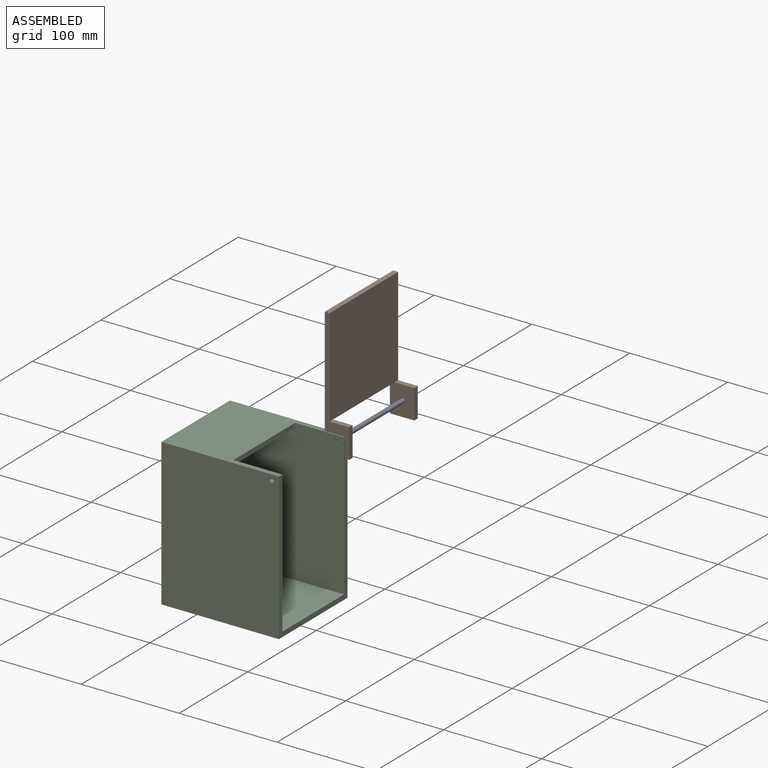
[diagram: assembled view]
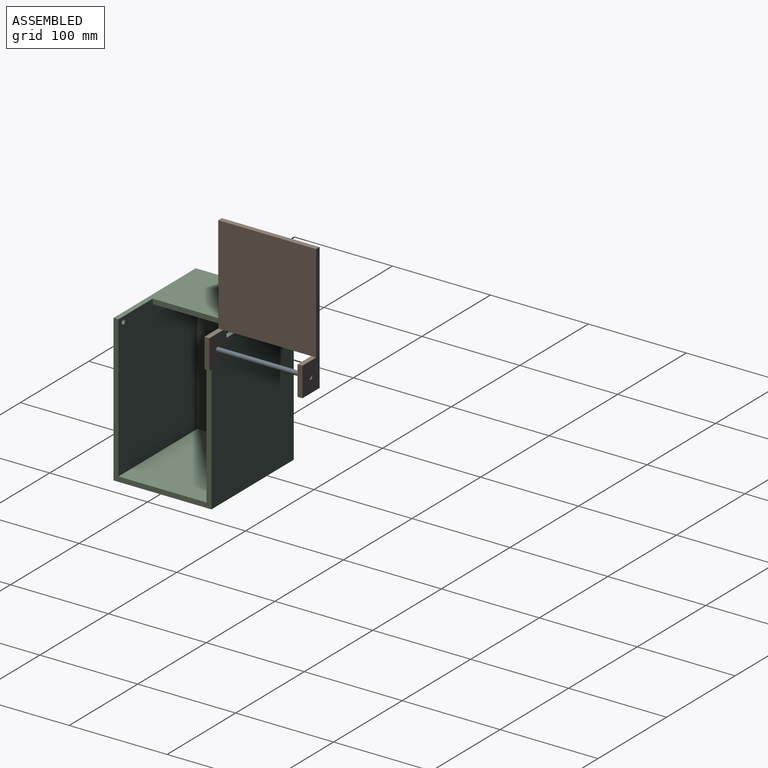
[diagram: assembled view, second angle]
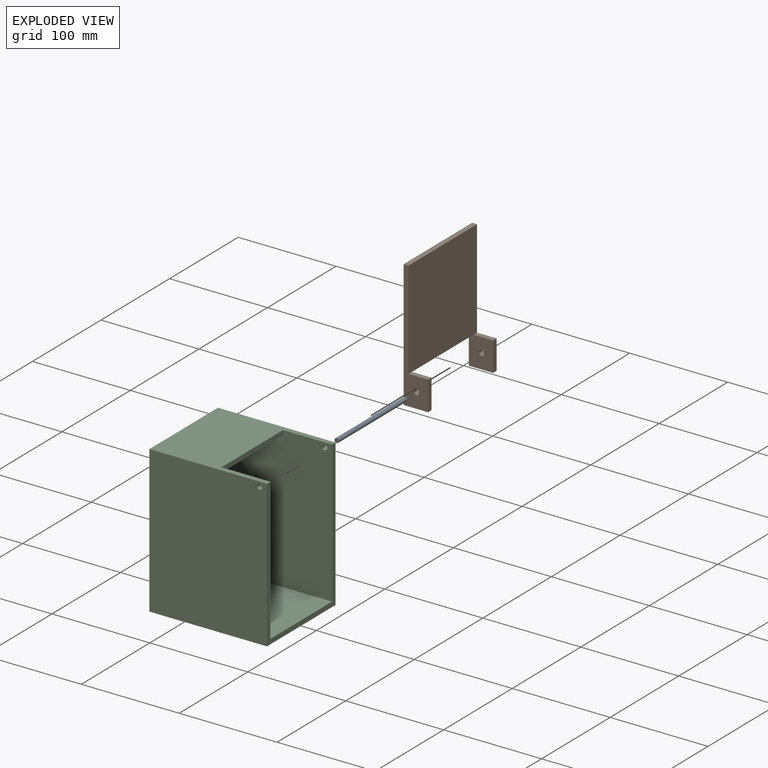
[diagram: exploded view]
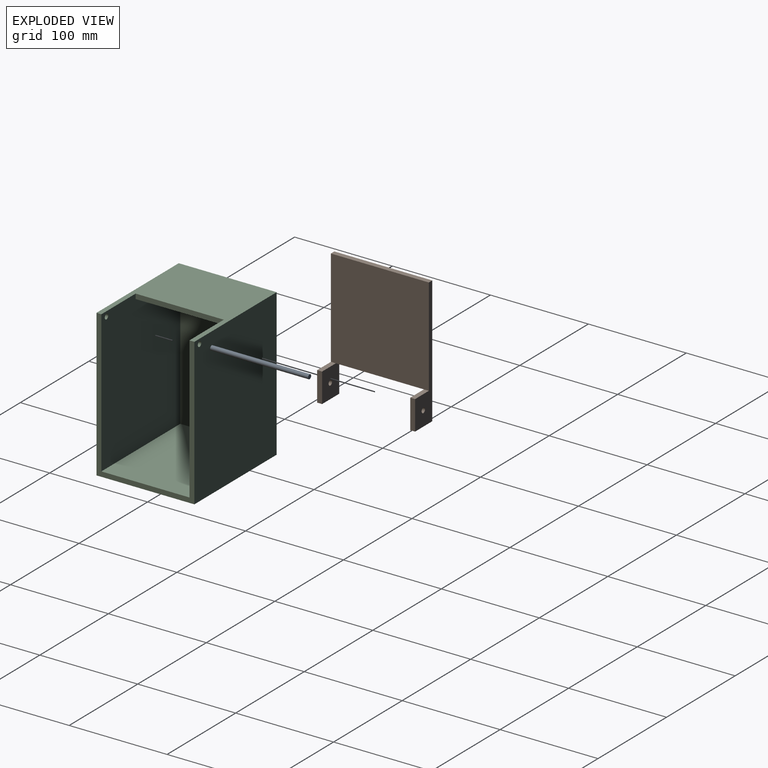
[diagram: exploded view, second angle]
ASSEMBLY  parts=3 mates=2
PART A: 3 faces, bbox 4.5x100x4.5 mm
  f0: cylinder r=2.25mm len=100mm, axis (0,1,0), area 1413.7mm2, adj f1,f2
  f1: plane 4.5x4.5mm, normal (0,-1,0), area 15.9mm2, adj f0
  f2: plane 4.5x4.5mm, normal (0,1,0), area 15.9mm2, adj f0
PART B: 16 faces, bbox 100x130x25 mm
  f0: plane 90x5mm, normal (0,-1,0), area 450mm2, adj f4,f5,f8,f11
  f1: plane 100x5mm, normal (0,1,0), area 500mm2, adj f2,f3,f4,f5
  f2: plane 130x25mm, normal (-1,0,0), area 1230.4mm2, adj f1,f4,f5,f6,f7,f9,f15
  f3: plane 130x25mm, normal (1,0,0), area 1230.4mm2, adj f1,f4,f5,f10,f12,f13,f14
  f4: plane 100x100mm, normal (0,0,1), area 10000mm2, adj f0,f1,f2,f3,f6,f10
  f5: plane 130x100mm, normal (0,0,-1), area 10300mm2, adj f0,f1,f2,f3,f7,f8,f11,f12
  f6: plane 20x5mm, normal (0,1,0), area 100mm2, adj f2,f4,f8,f9
  f7: plane 25x5mm, normal (0,-1,0), area 125mm2, adj f2,f5,f8,f9
  f8: plane 30x25mm, normal (1,0,0), area 730.4mm2, adj f0,f5,f6,f7,f9,f15
  f9: plane 30x5mm, normal (0,0,1), area 150mm2, adj f2,f6,f7,f8
  f10: plane 20x5mm, normal (0,1,0), area 100mm2, adj f3,f4,f11,f13
  f11: plane 30x25mm, normal (-1,0,0), area 730.4mm2, adj f0,f5,f10,f12,f13,f14
  f12: plane 25x5mm, normal (0,-1,0), area 125mm2, adj f3,f5,f11,f13
  f13: plane 30x5mm, normal (0,0,1), area 150mm2, adj f3,f10,f11,f12
  f14: cylinder r=2.5mm len=5mm, axis (1,0,0), area 78.5mm2, adj f3,f11
  f15: cylinder r=2.5mm len=5mm, axis (1,0,0), area 78.5mm2, adj f2,f8
PART C: 14 faces, bbox 100x150x120 mm
  f0: plane 150x100mm, normal (0,0,1), area 1950mm2, adj f1,f2,f3,f4,f6,f8,f9
  f1: plane 120x100mm, normal (0,-1,0), area 7500mm2, adj f0,f2,f3,f5,f6,f8,f11
  f2: plane 150x120mm, normal (-1,0,0), area 17980.4mm2, adj f0,f1,f4,f5,f13
  f3: plane 150x120mm, normal (1,0,0), area 17980.4mm2, adj f0,f1,f4,f5,f12
  f4: plane 120x100mm, normal (0,1,0), area 12000mm2, adj f0,f2,f3,f5
  f5: plane 150x100mm, normal (0,0,-1), area 15000mm2, adj f1,f2,f3,f4
  f6: plane 145x115mm, normal (1,0,0), area 16330.4mm2, adj f0,f1,f7,f9,f10,f11,f13
  f7: plane 90x65mm, normal (0,1,0), area 5850mm2, adj f6,f8,f10,f11
  f8: plane 145x115mm, normal (-1,0,0), area 16330.4mm2, adj f0,f1,f7,f9,f10,f11,f12
  f9: plane 115x90mm, normal (0,-1,0), area 10350mm2, adj f0,f6,f8,f10
  f10: plane 140x90mm, normal (0,0,1), area 12600mm2, adj f6,f7,f8,f9
  f11: plane 90x5mm, normal (0,0,1), area 450mm2, adj f1,f6,f7,f8
  f12: cylinder r=2.5mm len=5mm, axis (1,0,0), area 78.5mm2, adj f3,f8
  f13: cylinder r=2.5mm len=5mm, axis (1,0,0), area 78.5mm2, adj f2,f6
PLACE A rot(axis=(0.34,0.78,0.53),0deg) t=(-316.82,53.72,-1.73)mm
PLACE B rot(axis=(0.58,0.58,0.58),120deg) t=(-329.82,-45.19,113.27)mm
PLACE C rot(axis=(-0.58,0.58,-0.58),120deg) t=(-429.32,-41.28,3.27)mm
MATE cylindrical A.f0 <-> C.f12  axis (0,1,0) through (-316.82,-46.28,-1.73)mm
MATE cylindrical A.f0 <-> B.f14  axis (0,1,0) through (-316.82,3.72,-1.73)mm
